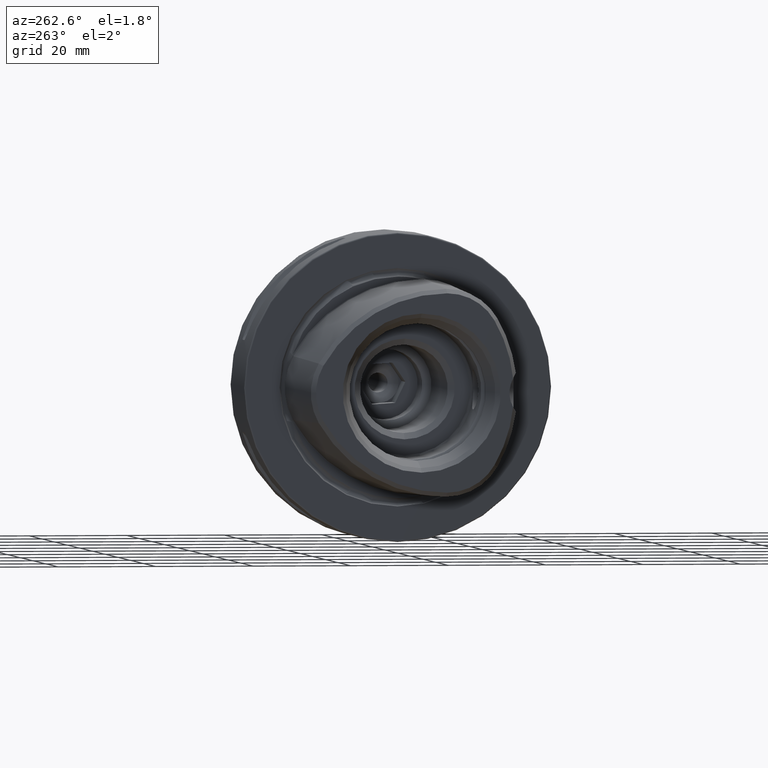
[diagram: clean part render]
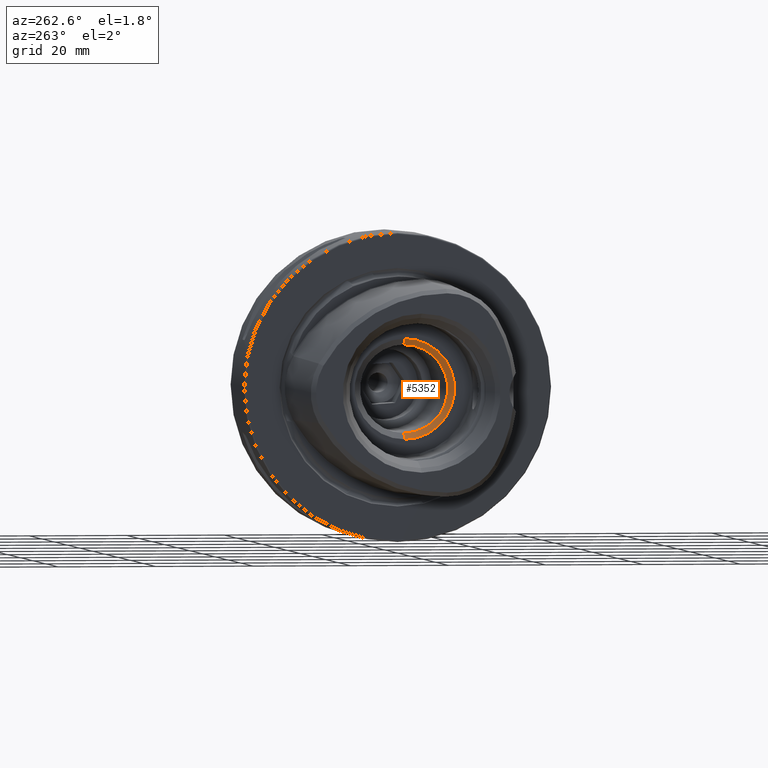
[diagram: same view with one face highlighted and labeled with its STEP entity id]
A machine part, auxiliary view. The second image highlights one B-rep face of the part: STEP entity #5352.
In plain terms, the highlighted conical surface has half-angle 45 deg.
Its self-contained STEP definition (entity closure, byte-faithful):
#77 = CARTESIAN_POINT ( 'NONE',  ( -10.99999999999999600, 0.0000000000000000000, 0.0000000000000000000 ) ) ;
#100 = ORIENTED_EDGE ( 'NONE', *, *, #2232, .F. ) ;
#574 = AXIS2_PLACEMENT_3D ( 'NONE', #2104, #4294, #2617 ) ;
#584 = CARTESIAN_POINT ( 'NONE',  ( -10.99999999999999600, 1.255262969126037200E-015, -10.25000000000000000 ) ) ;
#678 = ORIENTED_EDGE ( 'NONE', *, *, #6323, .T. ) ;
#1054 = DIRECTION ( 'NONE',  ( 0.0000000000000000000, 0.0000000000000000000, 1.000000000000000000 ) ) ;
#1244 = CARTESIAN_POINT ( 'NONE',  ( -10.99999999999999600, 1.255262969126037200E-015, -10.25000000000000000 ) ) ;
#1299 = DIRECTION ( 'NONE',  ( -1.000000000000000000, -0.0000000000000000000, -0.0000000000000000000 ) ) ;
#1345 = ORIENTED_EDGE ( 'NONE', *, *, #2940, .F. ) ;
#1404 = VERTEX_POINT ( 'NONE', #584 ) ;
#1566 = CIRCLE ( 'NONE', #574, 10.25000000000000000 ) ;
#1742 = VECTOR ( 'NONE', #2299, 1000.000000000000000 ) ;
#2104 = CARTESIAN_POINT ( 'NONE',  ( -10.99999999999999600, 0.0000000000000000000, 0.0000000000000000000 ) ) ;
#2232 = EDGE_CURVE ( 'NONE', #4662, #3796, #2508, .T. ) ;
#2299 = DIRECTION ( 'NONE',  ( -0.7071067811865475700, 8.659560562354931600E-017, -0.7071067811865474600 ) ) ;
#2472 = AXIS2_PLACEMENT_3D ( 'NONE', #77, #2774, #4452 ) ;
#2508 = LINE ( 'NONE', #6921, #3870 ) ;
#2617 = DIRECTION ( 'NONE',  ( 0.0000000000000000000, 0.0000000000000000000, 1.000000000000000000 ) ) ;
#2774 = DIRECTION ( 'NONE',  ( -1.000000000000000000, -0.0000000000000000000, -0.0000000000000000000 ) ) ;
#2940 = EDGE_CURVE ( 'NONE', #4640, #4662, #4195, .T. ) ;
#2986 = LINE ( 'NONE', #1244, #1742 ) ;
#3796 = VERTEX_POINT ( 'NONE', #5948 ) ;
#3870 = VECTOR ( 'NONE', #6380, 1000.000000000000000 ) ;
#3927 = CARTESIAN_POINT ( 'NONE',  ( -9.749999999999994700, 1.178722544179327600E-015, -9.000000000000000000 ) ) ;
#4195 = CIRCLE ( 'NONE', #5498, 9.000000000000000000 ) ;
#4294 = DIRECTION ( 'NONE',  ( -1.000000000000000000, -0.0000000000000000000, -0.0000000000000000000 ) ) ;
#4354 = FACE_OUTER_BOUND ( 'NONE', #5071, .T. ) ;
#4408 = EDGE_CURVE ( 'NONE', #1404, #3796, #1566, .T. ) ;
#4452 = DIRECTION ( 'NONE',  ( 0.0000000000000000000, 0.0000000000000000000, 1.000000000000000000 ) ) ;
#4518 = CARTESIAN_POINT ( 'NONE',  ( -9.749999999999994700, 0.0000000000000000000, 0.0000000000000000000 ) ) ;
#4640 = VERTEX_POINT ( 'NONE', #3927 ) ;
#4662 = VERTEX_POINT ( 'NONE', #6151 ) ;
#5071 = EDGE_LOOP ( 'NONE', ( #1345, #678, #5122, #100 ) ) ;
#5122 = ORIENTED_EDGE ( 'NONE', *, *, #4408, .T. ) ;
#5269 = CONICAL_SURFACE ( 'NONE', #2472, 10.25000000000000000, 0.7853981633974482800 ) ;
#5352 = ADVANCED_FACE ( 'NONE', ( #4354 ), #5269, .F. ) ;
#5498 = AXIS2_PLACEMENT_3D ( 'NONE', #4518, #1299, #1054 ) ;
#5948 = CARTESIAN_POINT ( 'NONE',  ( -10.99999999999999600, 0.0000000000000000000, 10.25000000000000000 ) ) ;
#6151 = CARTESIAN_POINT ( 'NONE',  ( -9.749999999999994700, 0.0000000000000000000, 9.000000000000000000 ) ) ;
#6323 = EDGE_CURVE ( 'NONE', #4640, #1404, #2986, .T. ) ;
#6380 = DIRECTION ( 'NONE',  ( -0.7071067811865475700, 0.0000000000000000000, 0.7071067811865474600 ) ) ;
#6921 = CARTESIAN_POINT ( 'NONE',  ( -10.99999999999999600, 0.0000000000000000000, 10.25000000000000000 ) ) ;